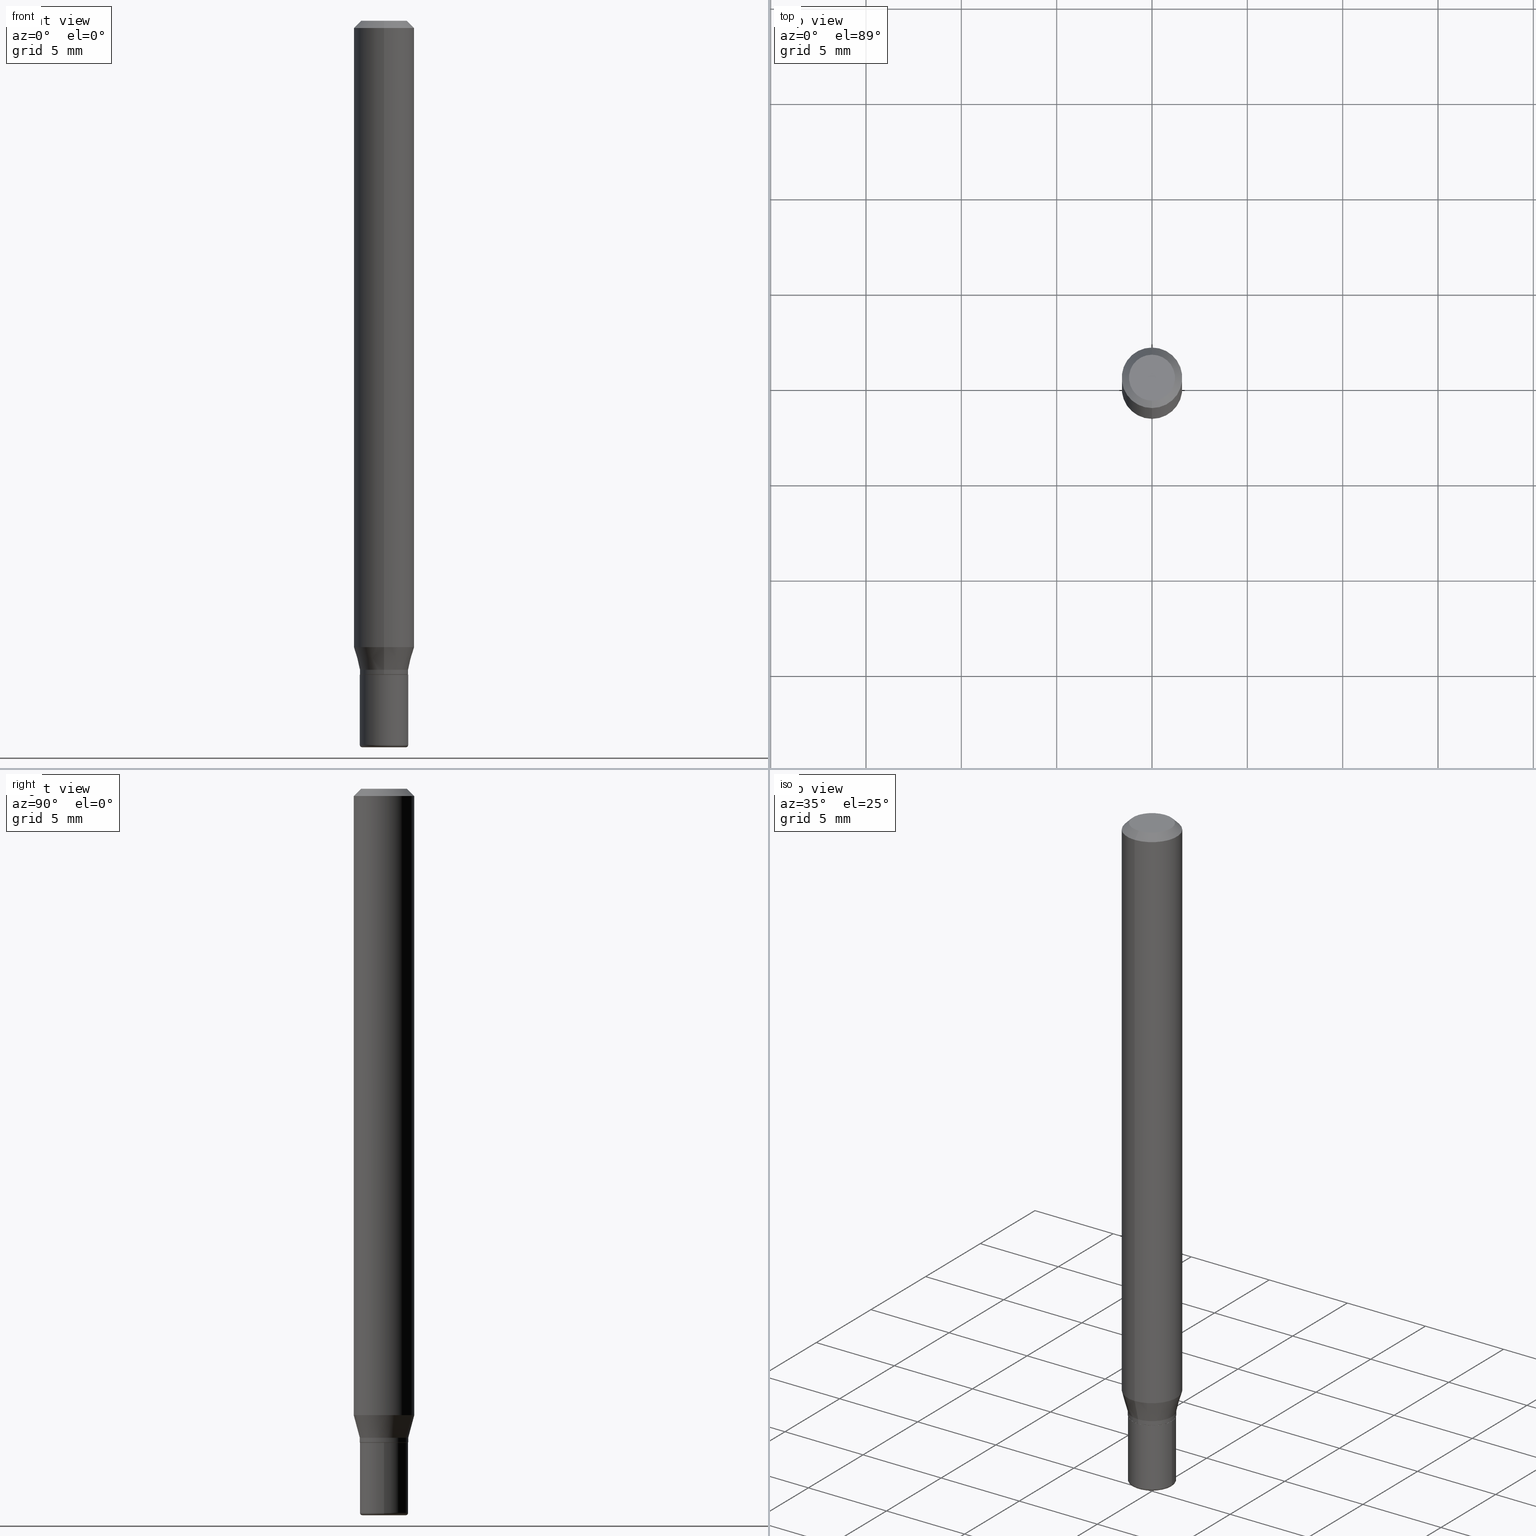
[diagram: canonical four-view strip — front | top / right | iso, engineering-drawing reading convention]
A machine part, canonical four-view strip (front | top / right | iso — engineering-drawing reading convention). The complete STEP part file that produces these views, byte-faithful:
ISO-10303-21;
HEADER;
FILE_DESCRIPTION (( 'STEP AP203' ),
    '1' );
FILE_NAME ('09216.STEP',
    '2024-02-29T23:31:54',
    ( '' ),
    ( '' ),
    'SwSTEP 2.0',
    'SolidWorks 2023',
    '' );
FILE_SCHEMA (( 'CONFIG_CONTROL_DESIGN' ));
ENDSEC;

DATA;
#1 = CARTESIAN_POINT ( 'NONE',  ( 0.000000000000000000, 0.000000000000000000, 0.000000000000000000 ) ) ;
#2 = AXIS2_PLACEMENT_3D ( 'NONE', #270, #74, #432 ) ;
#3 = VECTOR ( 'NONE', #462, 39.37007874015748143 ) ;
#4 = DATE_AND_TIME ( #204, #37 ) ;
#5 = CC_DESIGN_PERSON_AND_ORGANIZATION_ASSIGNMENT ( #493, #14, ( #172 ) ) ;
#6 = CARTESIAN_POINT ( 'NONE',  ( -0.05000000000000000278, -4.611360836624325249E-15, -1.350000000000000089 ) ) ;
#7 = MANIFOLD_SOLID_BREP ( 'Body-Move/Copy2[2]', #407 ) ;
#8 = COORDINATED_UNIVERSAL_TIME_OFFSET ( 5, 0, .BEHIND. ) ;
#9 = MANIFOLD_SOLID_BREP ( 'Body-Move/Copy2[1]', #195 ) ;
#10 = DIRECTION ( 'NONE',  ( 1.839019923739594399E-15, 0.2588190451025241257, 0.9659258262890673130 ) ) ;
#11 = PERSON_AND_ORGANIZATION ( #235, #324 ) ;
#12 = ORIENTED_EDGE ( 'NONE', *, *, #303, .F. ) ;
#13 = DIRECTION ( 'NONE',  ( -6.982962677686265133E-15, -1.000000000000000000, 5.463695987328528015E-15 ) ) ;
#14 = PERSON_AND_ORGANIZATION_ROLE ( 'design_owner' ) ;
#15 = ORIENTED_EDGE ( 'NONE', *, *, #18, .T. ) ;
#16 = VECTOR ( 'NONE', #256, 39.37007874015748143 ) ;
#17 = DIRECTION ( 'NONE',  ( -2.445468806185136597E-29, 3.491481338843145583E-15, 1.000000000000000000 ) ) ;
#18 = EDGE_CURVE ( 'NONE', #133, #271, #173, .T. ) ;
#19 = DIRECTION ( 'NONE',  ( 2.445432708408292326E-29, -3.491533032914144486E-15, -1.000000000000000000 ) ) ;
#20 = DIRECTION ( 'NONE',  ( 1.000000000000000000, -6.982962677686265922E-15, 4.876176775795936353E-29 ) ) ;
#21 = CARTESIAN_POINT ( 'NONE',  ( 3.655975865246779683E-29, -5.219764601570503930E-15, -1.495000000000000329 ) ) ;
#22 = ORIENTED_EDGE ( 'NONE', *, *, #353, .F. ) ;
#23 = CONICAL_SURFACE ( 'NONE', #370, 0.06250000000000000000, 0.7853981633974488341 ) ;
#24 = AXIS2_PLACEMENT_3D ( 'NONE', #413, #175, #48 ) ;
#25 = ADVANCED_FACE ( 'NONE', ( #383 ), #416, .T. ) ;
#26 = AXIS2_PLACEMENT_3D ( 'NONE', #142, #393, #387 ) ;
#27 = PRODUCT_DEFINITION_FORMATION_WITH_SPECIFIED_SOURCE ( 'ANY', '', #172, .NOT_KNOWN. ) ;
#28 = DIRECTION ( 'NONE',  ( -2.445468806185136597E-29, 3.491481338843145583E-15, 1.000000000000000000 ) ) ;
#29 = CARTESIAN_POINT ( 'NONE',  ( -3.491481338842803513E-16, -0.05000000000000465877, -1.339999999999999636 ) ) ;
#30 = ORIENTED_EDGE ( 'NONE', *, *, #377, .T. ) ;
#31 = DIRECTION ( 'NONE',  ( 1.000000000000000000, -6.982962677686266711E-15, 0.000000000000000000 ) ) ;
#32 = ORIENTED_EDGE ( 'NONE', *, *, #64, .F. ) ;
#33 = CARTESIAN_POINT ( 'NONE',  ( 3.668149062612366305E-31, -5.237299549371112845E-17, -0.01499999999999970281 ) ) ;
#34 = AXIS2_PLACEMENT_3D ( 'NONE', #61, #490, #219 ) ;
#35 = VECTOR ( 'NONE', #418, 39.37007874015748143 ) ;
#36 = VERTEX_POINT ( 'NONE', #306 ) ;
#37 = LOCAL_TIME ( 18, 31, 54.00000000000000000, #242 ) ;
#38 = EDGE_CURVE ( 'NONE', #263, #36, #147, .T. ) ;
#39 = DIRECTION ( 'NONE',  ( -2.445432708408292326E-29, 3.491533032914144486E-15, 1.000000000000000000 ) ) ;
#40 = ORIENTED_EDGE ( 'NONE', *, *, #38, .F. ) ;
#41 = DIRECTION ( 'NONE',  ( 1.000000000000000000, -6.982962677686265922E-15, 4.876176775795935793E-29 ) ) ;
#42 = DIRECTION ( 'NONE',  ( -2.445468806185136597E-29, 3.491481338843145583E-15, 1.000000000000000000 ) ) ;
#43 = EDGE_CURVE ( 'NONE', #198, #379, #471, .T. ) ;
#44 = AXIS2_PLACEMENT_3D ( 'NONE', #1, #49, #20 ) ;
#45 = LINE ( 'NONE', #365, #417 ) ;
#46 = PLANE ( 'NONE',  #51 ) ;
#47 = ADVANCED_FACE ( 'NONE', ( #109 ), #436, .F. ) ;
#48 = DIRECTION ( 'NONE',  ( 1.000000000000000000, 0.000000000000000000, 0.000000000000000000 ) ) ;
#49 = DIRECTION ( 'NONE',  ( -2.445468806185136597E-29, 3.491481338843145583E-15, 1.000000000000000000 ) ) ;
#50 = ORIENTED_EDGE ( 'NONE', *, *, #43, .F. ) ;
#51 = AXIS2_PLACEMENT_3D ( 'NONE', #124, #326, #41 ) ;
#52 = CARTESIAN_POINT ( 'NONE',  ( 3.552713678800826532E-16, 0.04999999999999529821, -1.340000000000000080 ) ) ;
#53 = DATE_TIME_ROLE ( 'classification_date' ) ;
#54 = EDGE_LOOP ( 'NONE', ( #213, #191, #211, #346 ) ) ;
#55 = FACE_OUTER_BOUND ( 'NONE', #257, .T. ) ;
#56 = SECURITY_CLASSIFICATION_LEVEL ( 'unclassified' ) ;
#57 = ORIENTED_EDGE ( 'NONE', *, *, #259, .T. ) ;
#58 = DIRECTION ( 'NONE',  ( -2.445432708408292326E-29, 3.491533032914144486E-15, 1.000000000000000000 ) ) ;
#59 = ADVANCED_FACE ( 'NONE', ( #476 ), #396, .T. ) ;
#60 = CIRCLE ( 'NONE', #260, 0.004999999999999903827 ) ;
#61 = CARTESIAN_POINT ( 'NONE',  ( 3.668149062612366305E-31, -5.237299549371112845E-17, -0.01499999999999970281 ) ) ;
#62 = CIRCLE ( 'NONE', #495, 0.04999999999999998196 ) ;
#63 = DIRECTION ( 'NONE',  ( -6.982962677686265922E-15, -1.000000000000000000, 5.518884835685384614E-15 ) ) ;
#64 = EDGE_CURVE ( 'NONE', #364, #423, #351, .T. ) ;
#65 = ORIENTED_EDGE ( 'NONE', *, *, #353, .T. ) ;
#66 = COORDINATED_UNIVERSAL_TIME_OFFSET ( 5, 0, .BEHIND. ) ;
#67 = VECTOR ( 'NONE', #68, 39.37007874015748143 ) ;
#68 = DIRECTION ( 'NONE',  ( -4.851104656540966641E-15, -0.7071067811865503483, -0.7071067811865446862 ) ) ;
#69 = CONICAL_SURFACE ( 'NONE', #361, 0.04949999999999996070, 0.7853981633975507526 ) ;
#70 = DATE_AND_TIME ( #186, #232 ) ;
#71 = CARTESIAN_POINT ( 'NONE',  ( -6.680610484932883231E-45, 9.538423244268342009E-31, 2.731872548347987796E-16 ) ) ;
#72 = ORIENTED_EDGE ( 'NONE', *, *, #489, .F. ) ;
#73 = CC_DESIGN_PERSON_AND_ORGANIZATION_ASSIGNMENT ( #343, #366, ( #468 ) ) ;
#74 = DIRECTION ( 'NONE',  ( -2.445468806185136597E-29, 3.491481338843145583E-15, 1.000000000000000000 ) ) ;
#75 = CIRCLE ( 'NONE', #141, 0.04999999999999991257 ) ;
#76 = DIRECTION ( 'NONE',  ( 1.000000000000000000, -6.982962677686267499E-15, 0.000000000000000000 ) ) ;
#77 = ORIENTED_EDGE ( 'NONE', *, *, #266, .T. ) ;
#78 =( NAMED_UNIT ( * ) PLANE_ANGLE_UNIT ( ) SI_UNIT ( $, .RADIAN. ) );
#79 = ADVANCED_FACE ( 'NONE', ( #188 ), #23, .T. ) ;
#80 = CARTESIAN_POINT ( 'NONE',  ( 3.668203209277704335E-29, -5.237222008264717388E-15, -1.499999999999999778 ) ) ;
#81 = ORIENTED_EDGE ( 'NONE', *, *, #282, .F. ) ;
#82 = LINE ( 'NONE', #238, #237 ) ;
#83 = CIRCLE ( 'NONE', #323, 0.05000000000000000278 ) ;
#84 = ORIENTED_EDGE ( 'NONE', *, *, #332, .T. ) ;
#85 = AXIS2_PLACEMENT_3D ( 'NONE', #458, #17, #94 ) ;
#86 = CARTESIAN_POINT ( 'NONE',  ( 4.440892098500943678E-16, 0.06249999999999551747, -1.293349364905389098 ) ) ;
#87 = CARTESIAN_POINT ( 'NONE',  ( 0.000000000000000000, 0.000000000000000000, 0.000000000000000000 ) ) ;
#88 = APPROVAL_DATE_TIME ( #372, #433 ) ;
#89 = CARTESIAN_POINT ( 'NONE',  ( 3.840629472727447874E-16, 0.04750000000000000749, 1.073394357713768884E-16 ) ) ;
#90 = VECTOR ( 'NONE', #311, 39.37007874015748854 ) ;
#91 = APPROVAL_PERSON_ORGANIZATION ( #254, #464, #422 ) ;
#92 = LOCAL_TIME ( 18, 31, 54.00000000000000000, #8 ) ;
#93 = CALENDAR_DATE ( 2024, 29, 2 ) ;
#94 = DIRECTION ( 'NONE',  ( 1.000000000000000000, -6.982962677686267499E-15, 4.883557194083112901E-29 ) ) ;
#95 = ADVANCED_FACE ( 'NONE', ( #354 ), #510, .T. ) ;
#96 = DIRECTION ( 'NONE',  ( -2.445432708408292326E-29, 3.491533032914144486E-15, 1.000000000000000000 ) ) ;
#97 = APPROVAL_ROLE ( '' ) ;
#98 = ORIENTED_EDGE ( 'NONE', *, *, #180, .T. ) ;
#99 = LINE ( 'NONE', #499, #16 ) ;
#100 = EDGE_LOOP ( 'NONE', ( #150, #65, #363, #72 ) ) ;
#101 = CIRCLE ( 'NONE', #382, 0.04500000000000000527 ) ;
#102 = LINE ( 'NONE', #210, #217 ) ;
#103 = ORIENTED_EDGE ( 'NONE', *, *, #489, .T. ) ;
#104 = AXIS2_PLACEMENT_3D ( 'NONE', #414, #405, #512 ) ;
#105 = VERTEX_POINT ( 'NONE', #349 ) ;
#106 = CARTESIAN_POINT ( 'NONE',  ( -3.491481338842793159E-16, -0.05000000000000456857, -1.349499999999999922 ) ) ;
#107 = CC_DESIGN_PERSON_AND_ORGANIZATION_ASSIGNMENT ( #497, #449, ( #163 ) ) ;
#108 = DIRECTION ( 'NONE',  ( -6.982962677686265133E-15, -1.000000000000000000, 5.463695987328530381E-15 ) ) ;
#109 = FACE_OUTER_BOUND ( 'NONE', #110, .T. ) ;
#110 = EDGE_LOOP ( 'NONE', ( #302, #357 ) ) ;
#111 = DIRECTION ( 'NONE',  ( 2.445432708408292326E-29, -3.491533032914144486E-15, -1.000000000000000000 ) ) ;
#112 = DIRECTION ( 'NONE',  ( 1.000000000000000000, -6.982962677686274599E-15, 0.000000000000000000 ) ) ;
#113 = VERTEX_POINT ( 'NONE', #143 ) ;
#114 = CC_DESIGN_APPROVAL ( #216, ( #163 ) ) ;
#115 = ADVANCED_FACE ( 'NONE', ( #151 ), #514, .T. ) ;
#116 = DIRECTION ( 'NONE',  ( -6.982962677686265922E-15, -1.000000000000000000, 4.370956789862821150E-15 ) ) ;
#117 = ORIENTED_EDGE ( 'NONE', *, *, #245, .F. ) ;
#118 = DIRECTION ( 'NONE',  ( 7.105427357601001859E-15, 1.000000000000000000, -3.491481338843145583E-15 ) ) ;
#119 = PLANE ( 'NONE',  #182 ) ;
#120 = PRODUCT_RELATED_PRODUCT_CATEGORY ( 'detail', '', ( #172 ) ) ;
#121 = FACE_OUTER_BOUND ( 'NONE', #136, .T. ) ;
#122 = ORIENTED_EDGE ( 'NONE', *, *, #403, .T. ) ;
#123 = AXIS2_PLACEMENT_3D ( 'NONE', #502, #308, #108 ) ;
#124 = CARTESIAN_POINT ( 'NONE',  ( 3.582686580359765478E-29, -5.359686688179452536E-15, -1.499999999999999778 ) ) ;
#125 = EDGE_CURVE ( 'NONE', #198, #133, #319, .T. ) ;
#126 = ORIENTED_EDGE ( 'NONE', *, *, #200, .F. ) ;
#127 = APPROVAL_STATUS ( 'not_yet_approved' ) ;
#128 = DIRECTION ( 'NONE',  ( -6.982962677686265133E-15, -1.000000000000000000, 3.491533032914144091E-15 ) ) ;
#129 = SHAPE_DEFINITION_REPRESENTATION ( #294, #455 ) ;
#130 = DIRECTION ( 'NONE',  ( -2.445432708408292326E-29, 3.491533032914144486E-15, 1.000000000000000000 ) ) ;
#131 = ADVANCED_FACE ( 'NONE', ( #482 ), #119, .F. ) ;
#132 = APPLICATION_PROTOCOL_DEFINITION ( 'international standard', 'config_control_design', 1994, #467 ) ;
#133 = VERTEX_POINT ( 'NONE', #442 ) ;
#134 = DIRECTION ( 'NONE',  ( 1.000000000000000000, -6.982962677686267499E-15, 4.883557194083112901E-29 ) ) ;
#135 = CARTESIAN_POINT ( 'NONE',  ( 3.276879829267111616E-29, -4.678654264104954108E-15, -1.339999999999999858 ) ) ;
#136 = EDGE_LOOP ( 'NONE', ( #176, #317, #446, #227 ) ) ;
#137 = CARTESIAN_POINT ( 'NONE',  ( 0.04999999999999996114, -3.491481338843130397E-16, 2.438088387897966145E-30 ) ) ;
#138 = DIRECTION ( 'NONE',  ( 6.982962677686265922E-15, 1.000000000000000000, -3.483106191921935554E-15 ) ) ;
#139 = CARTESIAN_POINT ( 'NONE',  ( 3.301334156351195229E-29, -4.713569594434094720E-15, -1.350000000000000089 ) ) ;
#140 = EDGE_CURVE ( 'NONE', #36, #252, #313, .T. ) ;
#141 = AXIS2_PLACEMENT_3D ( 'NONE', #21, #28, #31 ) ;
#142 = CARTESIAN_POINT ( 'NONE',  ( 3.301382888349935078E-29, -4.713499807438246596E-15, -1.350000000000000089 ) ) ;
#143 = CARTESIAN_POINT ( 'NONE',  ( 3.996802888650884119E-16, 0.04999999999999529821, -1.340000000000000080 ) ) ;
#144 = DIRECTION ( 'NONE',  ( -1.000000000000000000, 6.982962677686265922E-15, -4.876176775795935793E-29 ) ) ;
#145 = VERTEX_POINT ( 'NONE', #477 ) ;
#146 = ADVANCED_FACE ( 'NONE', ( #159 ), #46, .F. ) ;
#147 = LINE ( 'NONE', #29, #90 ) ;
#148 = CIRCLE ( 'NONE', #215, 0.04999999999999998196 ) ;
#149 = AXIS2_PLACEMENT_3D ( 'NONE', #291, #488, #424 ) ;
#150 = ORIENTED_EDGE ( 'NONE', *, *, #517, .T. ) ;
#151 = FACE_OUTER_BOUND ( 'NONE', #293, .T. ) ;
#152 = CARTESIAN_POINT ( 'NONE',  ( 0.000000000000000000, 0.000000000000000000, 0.000000000000000000 ) ) ;
#153 = ADVANCED_FACE ( 'NONE', ( #121 ), #202, .T. ) ;
#154 = ORIENTED_EDGE ( 'NONE', *, *, #483, .F. ) ;
#155 = AXIS2_PLACEMENT_3D ( 'NONE', #135, #96, #381 ) ;
#156 = DIRECTION ( 'NONE',  ( -2.445432708408292326E-29, 3.491533032914144486E-15, 1.000000000000000000 ) ) ;
#157 = ORIENTED_EDGE ( 'NONE', *, *, #169, .F. ) ;
#158 = DIRECTION ( 'NONE',  ( -6.982962677686265922E-15, -1.000000000000000000, 3.491533032914144486E-15 ) ) ;
#159 = FACE_OUTER_BOUND ( 'NONE', #340, .T. ) ;
#160 = EDGE_CURVE ( 'NONE', #321, #145, #83, .T. ) ;
#161 = CARTESIAN_POINT ( 'NONE',  ( 3.316907271900976589E-16, 0.04750000000000000749, -2.925419164602250137E-17 ) ) ;
#162 = VERTEX_POINT ( 'NONE', #286 ) ;
#163 = SECURITY_CLASSIFICATION ( '', '', #56 ) ;
#164 = DIRECTION ( 'NONE',  ( -2.445432708408292326E-29, 3.491533032914144486E-15, 1.000000000000000000 ) ) ;
#165 = DIRECTION ( 'NONE',  ( -2.445432708408292326E-29, 3.491533032914144486E-15, 1.000000000000000000 ) ) ;
#166 = ORIENTED_EDGE ( 'NONE', *, *, #368, .T. ) ;
#167 = PERSON_AND_ORGANIZATION_ROLE ( 'design_supplier' ) ;
#168 = DIRECTION ( 'NONE',  ( -2.445432708408292326E-29, 3.491533032914144486E-15, 1.000000000000000000 ) ) ;
#169 = EDGE_CURVE ( 'NONE', #162, #443, #380, .T. ) ;
#170 = ORIENTED_EDGE ( 'NONE', *, *, #43, .T. ) ;
#171 = DIRECTION ( 'NONE',  ( -6.982962677686265922E-15, -1.000000000000000000, 5.518884835685384614E-15 ) ) ;
#172 = PRODUCT ( '09216', '09216', '', ( #208 ) ) ;
#173 = CIRCLE ( 'NONE', #34, 0.06250000000000000000 ) ;
#174 = AXIS2_PLACEMENT_3D ( 'NONE', #139, #339, #171 ) ;
#175 = DIRECTION ( 'NONE',  ( 0.000000000000000000, 0.000000000000000000, 1.000000000000000000 ) ) ;
#176 = ORIENTED_EDGE ( 'NONE', *, *, #140, .T. ) ;
#177 = DIRECTION ( 'NONE',  ( -6.982962677686265133E-15, -1.000000000000000000, 5.463695987328528015E-15 ) ) ;
#178 = ORIENTED_EDGE ( 'NONE', *, *, #316, .F. ) ;
#179 = FACE_OUTER_BOUND ( 'NONE', #410, .T. ) ;
#180 = EDGE_CURVE ( 'NONE', #113, #263, #148, .T. ) ;
#181 = AXIS2_PLACEMENT_3D ( 'NONE', #484, #404, #358 ) ;
#182 = AXIS2_PLACEMENT_3D ( 'NONE', #161, #234, #289 ) ;
#183 = APPROVAL_ROLE ( '' ) ;
#184 = ORIENTED_EDGE ( 'NONE', *, *, #200, .T. ) ;
#185 = CIRCLE ( 'NONE', #123, 0.04999999999999996114 ) ;
#186 = CALENDAR_DATE ( 2024, 29, 2 ) ;
#187 = LINE ( 'NONE', #314, #504 ) ;
#188 = FACE_OUTER_BOUND ( 'NONE', #515, .T. ) ;
#189 = DIRECTION ( 'NONE',  ( 6.982962677686265922E-15, 1.000000000000000000, -3.483106191921935554E-15 ) ) ;
#190 = APPROVAL_PERSON_ORGANIZATION ( #11, #216, #183 ) ;
#191 = ORIENTED_EDGE ( 'NONE', *, *, #303, .T. ) ;
#192 = DIRECTION ( 'NONE',  ( -6.982962677686265133E-15, -1.000000000000000000, 3.491533032914144880E-15 ) ) ;
#193 = EDGE_CURVE ( 'NONE', #252, #36, #508, .T. ) ;
#194 = CARTESIAN_POINT ( 'NONE',  ( 3.276879829267111616E-29, -4.678654264104954108E-15, -1.339999999999999858 ) ) ;
#195 = CLOSED_SHELL ( 'NONE', ( #115, #272, #47, #225, #385, #146 ) ) ;
#196 = CIRCLE ( 'NONE', #104, 0.04949999999999996070 ) ;
#197 = DIRECTION ( 'NONE',  ( 1.000000000000000000, -6.982962677686265922E-15, 4.876176775795936353E-29 ) ) ;
#198 = VERTEX_POINT ( 'NONE', #236 ) ;
#199 = FACE_OUTER_BOUND ( 'NONE', #298, .T. ) ;
#200 = EDGE_CURVE ( 'NONE', #162, #423, #60, .T. ) ;
#201 = APPROVAL_STATUS ( 'not_yet_approved' ) ;
#202 = CYLINDRICAL_SURFACE ( 'NONE', #437, 0.06250000000000000000 ) ;
#203 = DIRECTION ( 'NONE',  ( -6.982962677686265133E-15, -1.000000000000000000, 3.491533032914144880E-15 ) ) ;
#204 = CALENDAR_DATE ( 2024, 29, 2 ) ;
#205 = LINE ( 'NONE', #501, #3 ) ;
#206 = AXIS2_PLACEMENT_3D ( 'NONE', #402, #164, #203 ) ;
#207 = CARTESIAN_POINT ( 'NONE',  ( 0.04999999999999991257, -5.568912735454817265E-15, -1.495000000000000329 ) ) ;
#208 = MECHANICAL_CONTEXT ( 'NONE', #329, 'mechanical' ) ;
#209 = EDGE_CURVE ( 'NONE', #105, #287, #196, .T. ) ;
#210 = CARTESIAN_POINT ( 'NONE',  ( -4.364351673553916201E-16, -0.06250000000000000000, 2.182208145571340057E-16 ) ) ;
#211 = ORIENTED_EDGE ( 'NONE', *, *, #453, .F. ) ;
#212 = DIRECTION ( 'NONE',  ( -6.982962677686265922E-15, -1.000000000000000000, 5.518884835685384614E-15 ) ) ;
#213 = ORIENTED_EDGE ( 'NONE', *, *, #474, .T. ) ;
#214 = FACE_OUTER_BOUND ( 'NONE', #337, .T. ) ;
#215 = AXIS2_PLACEMENT_3D ( 'NONE', #194, #156, #330 ) ;
#216 = APPROVAL ( #469, 'UNSPECIFIED' ) ;
#217 = VECTOR ( 'NONE', #336, 39.37007874015748143 ) ;
#218 = APPROVAL_PERSON_ORGANIZATION ( #335, #433, #97 ) ;
#219 = DIRECTION ( 'NONE',  ( -6.982962677686265922E-15, -1.000000000000000000, 3.483106191921935554E-15 ) ) ;
#220 = CARTESIAN_POINT ( 'NONE',  ( -0.04999999999999991257, -4.611360836624325249E-15, -1.495000000000000329 ) ) ;
#221 = CARTESIAN_POINT ( 'NONE',  ( 3.668149062612366305E-31, -5.237299549371112845E-17, -0.01499999999999970281 ) ) ;
#222 = CARTESIAN_POINT ( 'NONE',  ( -0.04500000000000000527, -4.890985505431563165E-15, -1.499999999999999778 ) ) ;
#223 = AXIS2_PLACEMENT_3D ( 'NONE', #267, #470, #400 ) ;
#224 = LOCAL_TIME ( 18, 31, 54.00000000000000000, #301 ) ;
#225 = ADVANCED_FACE ( 'NONE', ( #487 ), #320, .T. ) ;
#226 = APPROVAL_DATE_TIME ( #70, #216 ) ;
#227 = ORIENTED_EDGE ( 'NONE', *, *, #377, .F. ) ;
#228 = CARTESIAN_POINT ( 'NONE',  ( 3.491481338843463198E-16, 0.04999999999999529127, -1.350000000000000311 ) ) ;
#229 = ADVANCED_FACE ( 'NONE', ( #199 ), #362, .F. ) ;
#230 = CARTESIAN_POINT ( 'NONE',  ( 0.000000000000000000, 0.000000000000000000, 0.000000000000000000 ) ) ;
#231 = AXIS2_PLACEMENT_3D ( 'NONE', #71, #439, #466 ) ;
#232 = LOCAL_TIME ( 18, 31, 54.00000000000000000, #66 ) ;
#233 = LENGTH_MEASURE_WITH_UNIT ( LENGTH_MEASURE( 0.02539999999999999897 ), #318 );
#234 = DIRECTION ( 'NONE',  ( 2.445432708408292046E-29, -3.491533032914144486E-15, -1.000000000000000000 ) ) ;
#235 = PERSON ( 'UNSPECIFIED', 'UNSPECIFIED', 'UNSPECIFIED', ('UNSPECIFIED'), ('UNSPECIFIED'), ('UNSPECIFIED') ) ;
#236 = CARTESIAN_POINT ( 'NONE',  ( -3.773273898774340269E-16, -0.04750000000000000749, 4.390350738982206831E-16 ) ) ;
#237 = VECTOR ( 'NONE', #409, 39.37007874015748143 ) ;
#238 = CARTESIAN_POINT ( 'NONE',  ( 3.517186542012822477E-16, 0.04949999999999524919, -1.350000000000000311 ) ) ;
#239 = CC_DESIGN_PERSON_AND_ORGANIZATION_ASSIGNMENT ( #251, #297, ( #27 ) ) ;
#240 = ORIENTED_EDGE ( 'NONE', *, *, #316, .T. ) ;
#241 = CARTESIAN_POINT ( 'NONE',  ( 4.440892098500943678E-16, 0.06249999999999995143, -0.01499999999999992138 ) ) ;
#242 = COORDINATED_UNIVERSAL_TIME_OFFSET ( 5, 0, .BEHIND. ) ;
#243 = CARTESIAN_POINT ( 'NONE',  ( 3.301334156351195229E-29, -4.713569594434094720E-15, -1.350000000000000089 ) ) ;
#244 = EDGE_LOOP ( 'NONE', ( #22, #240, #103, #388 ) ) ;
#245 = EDGE_CURVE ( 'NONE', #443, #364, #296, .T. ) ;
#246 = DATE_AND_TIME ( #338, #92 ) ;
#247 = LINE ( 'NONE', #52, #391 ) ;
#248 = CIRCLE ( 'NONE', #149, 0.04999999999999996114 ) ;
#249 = ORIENTED_EDGE ( 'NONE', *, *, #125, .T. ) ;
#250 = CONICAL_SURFACE ( 'NONE', #371, 0.04999999999999998196, 0.2617993877991494633 ) ;
#251 = PERSON_AND_ORGANIZATION ( #235, #324 ) ;
#252 = VERTEX_POINT ( 'NONE', #86 ) ;
#253 = DIRECTION ( 'NONE',  ( 1.000000000000000000, -6.982962677686267499E-15, 0.000000000000000000 ) ) ;
#254 = PERSON_AND_ORGANIZATION ( #235, #324 ) ;
#255 = ORIENTED_EDGE ( 'NONE', *, *, #193, .F. ) ;
#256 = DIRECTION ( 'NONE',  ( -2.445432708408292606E-29, 3.491533032914144486E-15, 1.000000000000000000 ) ) ;
#257 = EDGE_LOOP ( 'NONE', ( #494, #98, #386, #255 ) ) ;
#258 = CARTESIAN_POINT ( 'NONE',  ( -6.680610484932883231E-45, 9.538423244268342009E-31, 2.731872548347987796E-16 ) ) ;
#259 = EDGE_CURVE ( 'NONE', #287, #395, #82, .T. ) ;
#260 = AXIS2_PLACEMENT_3D ( 'NONE', #280, #447, #481 ) ;
#261 = DIRECTION ( 'NONE',  ( -2.445432708408292606E-29, 3.491533032914144486E-15, 1.000000000000000000 ) ) ;
#262 = CC_DESIGN_SECURITY_CLASSIFICATION ( #163, ( #27 ) ) ;
#263 = VERTEX_POINT ( 'NONE', #367 ) ;
#264 = LINE ( 'NONE', #137, #431 ) ;
#265 = ORIENTED_EDGE ( 'NONE', *, *, #209, .F. ) ;
#266 = EDGE_CURVE ( 'NONE', #105, #498, #45, .T. ) ;
#267 = CARTESIAN_POINT ( 'NONE',  ( 0.000000000000000000, 0.000000000000000000, 0.000000000000000000 ) ) ;
#268 = UNCERTAINTY_MEASURE_WITH_UNIT (LENGTH_MEASURE( 1.000000000000000082E-05 ), #274, 'distance_accuracy_value', 'NONE');
#269 = AXIS2_PLACEMENT_3D ( 'NONE', #426, #130, #63 ) ;
#270 = CARTESIAN_POINT ( 'NONE',  ( 3.655975865246779683E-29, -5.219764601570503930E-15, -1.495000000000000329 ) ) ;
#271 = VERTEX_POINT ( 'NONE', #241 ) ;
#272 = ADVANCED_FACE ( 'NONE', ( #334 ), #411, .T. ) ;
#273 = ORIENTED_EDGE ( 'NONE', *, *, #64, .T. ) ;
#274 =( CONVERSION_BASED_UNIT ( 'INCH', #233 ) LENGTH_UNIT ( ) NAMED_UNIT ( #389 ) );
#275 = AXIS2_PLACEMENT_3D ( 'NONE', #401, #506, #134 ) ;
#276 =( GEOMETRIC_REPRESENTATION_CONTEXT ( 3 ) GLOBAL_UNCERTAINTY_ASSIGNED_CONTEXT ( ( #268 ) ) GLOBAL_UNIT_ASSIGNED_CONTEXT ( ( #274, #78, #322 ) ) REPRESENTATION_CONTEXT ( 'NONE', 'WORKASPACE' ) );
#277 = CC_DESIGN_APPROVAL ( #464, ( #468 ) ) ;
#278 = DIRECTION ( 'NONE',  ( -6.982962677686265922E-15, -1.000000000000000000, 3.491533032914144091E-15 ) ) ;
#279 = EDGE_LOOP ( 'NONE', ( #166, #170 ) ) ;
#280 = CARTESIAN_POINT ( 'NONE',  ( 0.04500000000000000527, -5.533997922066385616E-15, -1.495000000000000107 ) ) ;
#281 = ORIENTED_EDGE ( 'NONE', *, *, #327, .T. ) ;
#282 = EDGE_CURVE ( 'NONE', #271, #133, #485, .T. ) ;
#283 = DIRECTION ( 'NONE',  ( -1.000000000000000000, 7.105427357601061812E-15, 0.000000000000000000 ) ) ;
#284 = AXIS2_PLACEMENT_3D ( 'NONE', #513, #479, #116 ) ;
#285 = CIRCLE ( 'NONE', #26, 0.05000000000000000278 ) ;
#286 = CARTESIAN_POINT ( 'NONE',  ( 0.04500000000000000527, -5.551455328760599863E-15, -1.499999999999999778 ) ) ;
#287 = VERTEX_POINT ( 'NONE', #429 ) ;
#288 = DATE_TIME_ROLE ( 'creation_date' ) ;
#289 = DIRECTION ( 'NONE',  ( 6.982962677686265922E-15, 1.000000000000000000, -3.491533032914144486E-15 ) ) ;
#290 = ADVANCED_FACE ( 'NONE', ( #421 ), #69, .T. ) ;
#291 = CARTESIAN_POINT ( 'NONE',  ( 3.300111439996990880E-29, -4.711823827917637768E-15, -1.349500000000000144 ) ) ;
#292 = CALENDAR_DATE ( 2024, 29, 2 ) ;
#293 = EDGE_LOOP ( 'NONE', ( #406, #392, #360, #126 ) ) ;
#294 = PRODUCT_DEFINITION_SHAPE ( 'NONE', 'NONE',  #468 ) ;
#295 = CARTESIAN_POINT ( 'NONE',  ( 3.276879829267111616E-29, -4.678654264104954108E-15, -1.339999999999999858 ) ) ;
#296 = CIRCLE ( 'NONE', #478, 0.004999999999999903827 ) ;
#297 = PERSON_AND_ORGANIZATION_ROLE ( 'creator' ) ;
#298 = EDGE_LOOP ( 'NONE', ( #265, #459 ) ) ;
#299 = CARTESIAN_POINT ( 'NONE',  ( -4.287811248607203282E-16, -0.06250000000000005551, -0.01499999999999948597 ) ) ;
#300 = CARTESIAN_POINT ( 'NONE',  ( -0.04999999999999996114, 3.552713678800498168E-16, -2.459467545127451209E-30 ) ) ;
#301 = COORDINATED_UNIVERSAL_TIME_OFFSET ( 5, 0, .BEHIND. ) ;
#302 = ORIENTED_EDGE ( 'NONE', *, *, #453, .T. ) ;
#303 = EDGE_CURVE ( 'NONE', #364, #321, #373, .T. ) ;
#304 = DIRECTION ( 'NONE',  ( -2.445432708408292326E-29, 3.491533032914144486E-15, 1.000000000000000000 ) ) ;
#305 = DIRECTION ( 'NONE',  ( 4.937700262164550409E-15, 0.7071067811865454633, -0.7071067811865495711 ) ) ;
#306 = CARTESIAN_POINT ( 'NONE',  ( -4.364351673553597698E-16, -0.06250000000000449640, -1.293349364905388654 ) ) ;
#307 = CARTESIAN_POINT ( 'NONE',  ( 3.276879829267111616E-29, -4.678654264104954108E-15, -1.339999999999999858 ) ) ;
#308 = DIRECTION ( 'NONE',  ( -2.445432708408292326E-29, 3.491533032914144486E-15, 1.000000000000000000 ) ) ;
#309 = ORIENTED_EDGE ( 'NONE', *, *, #403, .F. ) ;
#310 = EDGE_CURVE ( 'NONE', #252, #271, #99, .T. ) ;
#311 = DIRECTION ( 'NONE',  ( -1.807323732225324223E-15, -0.2588190451025173533, 0.9659258262890690894 ) ) ;
#312 = ORIENTED_EDGE ( 'NONE', *, *, #266, .F. ) ;
#313 = CIRCLE ( 'NONE', #181, 0.06250000000000000000 ) ;
#314 = CARTESIAN_POINT ( 'NONE',  ( 4.364351673553919652E-16, 0.06249999999999995143, -0.01499999999999992138 ) ) ;
#315 = AXIS2_PLACEMENT_3D ( 'NONE', #258, #304, #128 ) ;
#316 = EDGE_CURVE ( 'NONE', #395, #498, #248, .T. ) ;
#317 = ORIENTED_EDGE ( 'NONE', *, *, #310, .T. ) ;
#318 =( LENGTH_UNIT ( ) NAMED_UNIT ( * ) SI_UNIT ( $, .METRE. ) );
#319 = LINE ( 'NONE', #299, #67 ) ;
#320 = CYLINDRICAL_SURFACE ( 'NONE', #408, 0.04999999999999996114 ) ;
#321 = VERTEX_POINT ( 'NONE', #6 ) ;
#322 =( NAMED_UNIT ( * ) SI_UNIT ( $, .STERADIAN. ) SOLID_ANGLE_UNIT ( ) );
#323 = AXIS2_PLACEMENT_3D ( 'NONE', #356, #440, #112 ) ;
#324 = ORGANIZATION ( 'UNSPECIFIED', 'UNSPECIFIED', '' ) ;
#325 = DESIGN_CONTEXT ( 'detailed design', #467, 'design' ) ;
#326 = DIRECTION ( 'NONE',  ( -2.438088387897960049E-29, 3.491481338843145188E-15, 1.000000000000000000 ) ) ;
#327 = EDGE_CURVE ( 'NONE', #423, #145, #264, .T. ) ;
#328 = CARTESIAN_POINT ( 'NONE',  ( -0.04500000000000000527, -4.900020370478457773E-15, -1.495000000000000107 ) ) ;
#329 = APPLICATION_CONTEXT ( 'configuration controlled 3d designs of mechanical parts and assemblies' ) ;
#330 = DIRECTION ( 'NONE',  ( -6.982962677686265133E-15, -1.000000000000000000, 5.463695987328528015E-15 ) ) ;
#331 = AXIS2_PLACEMENT_3D ( 'NONE', #221, #19, #138 ) ;
#332 = EDGE_CURVE ( 'NONE', #263, #113, #62, .T. ) ;
#333 = TOROIDAL_SURFACE ( 'NONE', #85, 0.04500000000000000527, 0.004999999999999903827 ) ;
#334 = FACE_OUTER_BOUND ( 'NONE', #54, .T. ) ;
#335 = PERSON_AND_ORGANIZATION ( #235, #324 ) ;
#336 = DIRECTION ( 'NONE',  ( -2.445432708408292606E-29, 3.491533032914144486E-15, 1.000000000000000000 ) ) ;
#337 = EDGE_LOOP ( 'NONE', ( #84, #465, #430, #40 ) ) ;
#338 = CALENDAR_DATE ( 2024, 29, 2 ) ;
#339 = DIRECTION ( 'NONE',  ( -2.445432708408292326E-29, 3.491533032914144486E-15, 1.000000000000000000 ) ) ;
#340 = EDGE_LOOP ( 'NONE', ( #157, #309 ) ) ;
#341 = CIRCLE ( 'NONE', #174, 0.04949999999999996070 ) ;
#342 = ADVANCED_FACE ( 'NONE', ( #179 ), #427, .T. ) ;
#343 = PERSON_AND_ORGANIZATION ( #235, #324 ) ;
#344 = EDGE_LOOP ( 'NONE', ( #445, #57, #428, #312 ) ) ;
#345 = FACE_OUTER_BOUND ( 'NONE', #355, .T. ) ;
#346 = ORIENTED_EDGE ( 'NONE', *, *, #327, .F. ) ;
#347 = CARTESIAN_POINT ( 'NONE',  ( 3.301334156351195229E-29, -4.713569594434094720E-15, -1.350000000000000089 ) ) ;
#348 = ADVANCED_FACE ( 'NONE', ( #214 ), #250, .T. ) ;
#349 = CARTESIAN_POINT ( 'NONE',  ( -3.456566525454369004E-16, -0.04950000000000467221, -1.349999999999999867 ) ) ;
#350 = ORIENTED_EDGE ( 'NONE', *, *, #359, .T. ) ;
#351 = CIRCLE ( 'NONE', #2, 0.04999999999999991257 ) ;
#352 = VECTOR ( 'NONE', #261, 39.37007874015748143 ) ;
#353 = EDGE_CURVE ( 'NONE', #395, #113, #205, .T. ) ;
#354 = FACE_OUTER_BOUND ( 'NONE', #244, .T. ) ;
#355 = EDGE_LOOP ( 'NONE', ( #117, #122, #184, #32 ) ) ;
#356 = CARTESIAN_POINT ( 'NONE',  ( 3.301382888349935078E-29, -4.713499807438246596E-15, -1.350000000000000089 ) ) ;
#357 = ORIENTED_EDGE ( 'NONE', *, *, #160, .T. ) ;
#358 = DIRECTION ( 'NONE',  ( -6.982962677686265922E-15, -1.000000000000000000, 4.370956789862821150E-15 ) ) ;
#359 = EDGE_CURVE ( 'NONE', #287, #105, #341, .T. ) ;
#360 = ORIENTED_EDGE ( 'NONE', *, *, #474, .F. ) ;
#361 = AXIS2_PLACEMENT_3D ( 'NONE', #347, #168, #212 ) ;
#362 = PLANE ( 'NONE',  #399 ) ;
#363 = ORIENTED_EDGE ( 'NONE', *, *, #332, .F. ) ;
#364 = VERTEX_POINT ( 'NONE', #220 ) ;
#365 = CARTESIAN_POINT ( 'NONE',  ( -3.456566525454369004E-16, -0.04950000000000467221, -1.349999999999999867 ) ) ;
#366 = PERSON_AND_ORGANIZATION_ROLE ( 'creator' ) ;
#367 = CARTESIAN_POINT ( 'NONE',  ( -3.491481338842803513E-16, -0.05000000000000465877, -1.339999999999999636 ) ) ;
#368 = EDGE_CURVE ( 'NONE', #379, #198, #472, .T. ) ;
#369 = PERSON_AND_ORGANIZATION ( #235, #324 ) ;
#370 = AXIS2_PLACEMENT_3D ( 'NONE', #33, #111, #189 ) ;
#371 = AXIS2_PLACEMENT_3D ( 'NONE', #295, #165, #13 ) ;
#372 = DATE_AND_TIME ( #93, #505 ) ;
#373 = LINE ( 'NONE', #300, #35 ) ;
#374 = COORDINATED_UNIVERSAL_TIME_OFFSET ( 5, 0, .BEHIND. ) ;
#375 = ORIENTED_EDGE ( 'NONE', *, *, #125, .F. ) ;
#376 = DIRECTION ( 'NONE',  ( -6.982962677686265922E-15, -1.000000000000000000, 3.483106191921935554E-15 ) ) ;
#377 = EDGE_CURVE ( 'NONE', #36, #133, #102, .T. ) ;
#378 = APPLICATION_PROTOCOL_DEFINITION ( 'international standard', 'config_control_design', 1994, #329 ) ;
#379 = VERTEX_POINT ( 'NONE', #89 ) ;
#380 = CIRCLE ( 'NONE', #390, 0.04500000000000000527 ) ;
#381 = DIRECTION ( 'NONE',  ( -6.982962677686265133E-15, -1.000000000000000000, 5.463695987328528015E-15 ) ) ;
#382 = AXIS2_PLACEMENT_3D ( 'NONE', #496, #456, #253 ) ;
#383 = FACE_OUTER_BOUND ( 'NONE', #475, .T. ) ;
#384 = DIRECTION ( 'NONE',  ( -2.445468806185136877E-29, 3.491481338843145188E-15, 1.000000000000000000 ) ) ;
#385 = ADVANCED_FACE ( 'NONE', ( #345 ), #333, .T. ) ;
#386 = ORIENTED_EDGE ( 'NONE', *, *, #38, .T. ) ;
#387 = DIRECTION ( 'NONE',  ( 1.000000000000000000, -6.982962677686274599E-15, 0.000000000000000000 ) ) ;
#388 = ORIENTED_EDGE ( 'NONE', *, *, #180, .F. ) ;
#389 = DIMENSIONAL_EXPONENTS ( 1.000000000000000000, 0.000000000000000000, 0.000000000000000000, 0.000000000000000000, 0.000000000000000000, 0.000000000000000000, 0.000000000000000000 ) ;
#390 = AXIS2_PLACEMENT_3D ( 'NONE', #80, #450, #76 ) ;
#391 = VECTOR ( 'NONE', #10, 39.37007874015748854 ) ;
#392 = ORIENTED_EDGE ( 'NONE', *, *, #245, .T. ) ;
#393 = DIRECTION ( 'NONE',  ( -2.445468806185136597E-29, 3.491481338843145583E-15, 1.000000000000000000 ) ) ;
#394 = EDGE_CURVE ( 'NONE', #113, #252, #247, .T. ) ;
#395 = VERTEX_POINT ( 'NONE', #491 ) ;
#396 = CYLINDRICAL_SURFACE ( 'NONE', #223, 0.06250000000000000000 ) ;
#397 = CYLINDRICAL_SURFACE ( 'NONE', #206, 0.04999999999999996808 ) ;
#398 = ORIENTED_EDGE ( 'NONE', *, *, #160, .F. ) ;
#399 = AXIS2_PLACEMENT_3D ( 'NONE', #243, #516, #158 ) ;
#400 = DIRECTION ( 'NONE',  ( -6.982962677686265922E-15, -1.000000000000000000, 3.491533032914144091E-15 ) ) ;
#401 = CARTESIAN_POINT ( 'NONE',  ( 3.655975865246779122E-29, -5.219764601570503141E-15, -1.495000000000000107 ) ) ;
#402 = CARTESIAN_POINT ( 'NONE',  ( 0.000000000000000000, 0.000000000000000000, 0.000000000000000000 ) ) ;
#403 = EDGE_CURVE ( 'NONE', #443, #162, #101, .T. ) ;
#404 = DIRECTION ( 'NONE',  ( -2.445432708408292326E-29, 3.491533032914144486E-15, 1.000000000000000000 ) ) ;
#405 = DIRECTION ( 'NONE',  ( -2.445432708408292326E-29, 3.491533032914144486E-15, 1.000000000000000000 ) ) ;
#406 = ORIENTED_EDGE ( 'NONE', *, *, #169, .T. ) ;
#407 = CLOSED_SHELL ( 'NONE', ( #420, #290, #79, #153, #348, #412, #59, #25, #131, #229, #342, #95 ) ) ;
#408 = AXIS2_PLACEMENT_3D ( 'NONE', #152, #42, #197 ) ;
#409 = DIRECTION ( 'NONE',  ( 5.024295867788576727E-15, 0.7071067811866224018, 0.7071067811864726327 ) ) ;
#410 = EDGE_LOOP ( 'NONE', ( #415, #350, #77, #178 ) ) ;
#411 = CYLINDRICAL_SURFACE ( 'NONE', #44, 0.04999999999999996114 ) ;
#412 = ADVANCED_FACE ( 'NONE', ( #55 ), #509, .T. ) ;
#413 = CARTESIAN_POINT ( 'NONE',  ( 0.000000000000000000, 0.000000000000000000, 0.000000000000000000 ) ) ;
#414 = CARTESIAN_POINT ( 'NONE',  ( 3.301334156351195229E-29, -4.713569594434094720E-15, -1.350000000000000089 ) ) ;
#415 = ORIENTED_EDGE ( 'NONE', *, *, #259, .F. ) ;
#416 = CONICAL_SURFACE ( 'NONE', #331, 0.06250000000000000000, 0.7853981633974488341 ) ;
#417 = VECTOR ( 'NONE', #518, 39.37007874015748143 ) ;
#418 = DIRECTION ( 'NONE',  ( -2.445468806185136877E-29, 3.491481338843145188E-15, 1.000000000000000000 ) ) ;
#419 = DATE_AND_TIME ( #292, #224 ) ;
#420 = ADVANCED_FACE ( 'NONE', ( #435 ), #397, .T. ) ;
#421 = FACE_OUTER_BOUND ( 'NONE', #344, .T. ) ;
#422 = APPROVAL_ROLE ( '' ) ;
#423 = VERTEX_POINT ( 'NONE', #207 ) ;
#424 = DIRECTION ( 'NONE',  ( -6.982962677686265133E-15, -1.000000000000000000, 5.463695987328530381E-15 ) ) ;
#425 = ORIENTED_EDGE ( 'NONE', *, *, #310, .F. ) ;
#426 = CARTESIAN_POINT ( 'NONE',  ( 3.301334156351195229E-29, -4.713569594434094720E-15, -1.350000000000000089 ) ) ;
#427 = CONICAL_SURFACE ( 'NONE', #269, 0.04949999999999996070, 0.7853981633975507526 ) ;
#428 = ORIENTED_EDGE ( 'NONE', *, *, #517, .F. ) ;
#429 = CARTESIAN_POINT ( 'NONE',  ( 3.534950110406824997E-16, 0.04949999999999524919, -1.350000000000000311 ) ) ;
#430 = ORIENTED_EDGE ( 'NONE', *, *, #140, .F. ) ;
#431 = VECTOR ( 'NONE', #384, 39.37007874015748143 ) ;
#432 = DIRECTION ( 'NONE',  ( 1.000000000000000000, -6.982962677686266711E-15, 0.000000000000000000 ) ) ;
#433 = APPROVAL ( #127, 'UNSPECIFIED' ) ;
#434 = EDGE_LOOP ( 'NONE', ( #425, #480, #30, #81 ) ) ;
#435 = FACE_OUTER_BOUND ( 'NONE', #100, .T. ) ;
#436 = PLANE ( 'NONE',  #492 ) ;
#437 = AXIS2_PLACEMENT_3D ( 'NONE', #87, #444, #278 ) ;
#438 = CC_DESIGN_DATE_AND_TIME_ASSIGNMENT ( #246, #288, ( #468 ) ) ;
#439 = DIRECTION ( 'NONE',  ( -2.445432708408292326E-29, 3.491533032914144486E-15, 1.000000000000000000 ) ) ;
#440 = DIRECTION ( 'NONE',  ( -2.445468806185136597E-29, 3.491481338843145583E-15, 1.000000000000000000 ) ) ;
#441 = ORIENTED_EDGE ( 'NONE', *, *, #368, .F. ) ;
#442 = CARTESIAN_POINT ( 'NONE',  ( -4.364351673553912750E-16, -0.06250000000000005551, -0.01499999999999948597 ) ) ;
#443 = VERTEX_POINT ( 'NONE', #222 ) ;
#444 = DIRECTION ( 'NONE',  ( -2.445432708408292326E-29, 3.491533032914144486E-15, 1.000000000000000000 ) ) ;
#445 = ORIENTED_EDGE ( 'NONE', *, *, #209, .T. ) ;
#446 = ORIENTED_EDGE ( 'NONE', *, *, #18, .F. ) ;
#447 = DIRECTION ( 'NONE',  ( -6.982962677686266711E-15, -1.000000000000000000, 3.491481338843145583E-15 ) ) ;
#448 = CC_DESIGN_DATE_AND_TIME_ASSIGNMENT ( #4, #53, ( #163 ) ) ;
#449 = PERSON_AND_ORGANIZATION_ROLE ( 'classification_officer' ) ;
#450 = DIRECTION ( 'NONE',  ( -2.445468806185136597E-29, 3.491481338843145583E-15, 1.000000000000000000 ) ) ;
#451 = DIRECTION ( 'NONE',  ( -2.445432708408292326E-29, 3.491533032914144486E-15, 1.000000000000000000 ) ) ;
#452 = ORIENTED_EDGE ( 'NONE', *, *, #483, .T. ) ;
#453 = EDGE_CURVE ( 'NONE', #145, #321, #285, .T. ) ;
#454 = CC_DESIGN_APPROVAL ( #433, ( #27 ) ) ;
#455 = ADVANCED_BREP_SHAPE_REPRESENTATION ( '09216', ( #9, #7, #24 ), #276 ) ;
#456 = DIRECTION ( 'NONE',  ( -2.445468806185136597E-29, 3.491481338843145583E-15, 1.000000000000000000 ) ) ;
#457 = EDGE_LOOP ( 'NONE', ( #12, #273, #281, #398 ) ) ;
#458 = CARTESIAN_POINT ( 'NONE',  ( 3.655975865246779122E-29, -5.219764601570503141E-15, -1.495000000000000107 ) ) ;
#459 = ORIENTED_EDGE ( 'NONE', *, *, #359, .F. ) ;
#460 = CARTESIAN_POINT ( 'NONE',  ( 3.668149062612366305E-31, -5.237299549371112845E-17, -0.01499999999999970281 ) ) ;
#461 = LINE ( 'NONE', #473, #352 ) ;
#462 = DIRECTION ( 'NONE',  ( -2.445432708408292606E-29, 3.491533032914144486E-15, 1.000000000000000000 ) ) ;
#463 = AXIS2_PLACEMENT_3D ( 'NONE', #460, #58, #376 ) ;
#464 = APPROVAL ( #201, 'UNSPECIFIED' ) ;
#465 = ORIENTED_EDGE ( 'NONE', *, *, #394, .T. ) ;
#466 = DIRECTION ( 'NONE',  ( -6.982962677686265133E-15, -1.000000000000000000, 3.491533032914144091E-15 ) ) ;
#467 = APPLICATION_CONTEXT ( 'configuration controlled 3d designs of mechanical parts and assemblies' ) ;
#468 = PRODUCT_DEFINITION ( 'UNKNOWN', '', #27, #325 ) ;
#469 = APPROVAL_STATUS ( 'not_yet_approved' ) ;
#470 = DIRECTION ( 'NONE',  ( -2.445432708408292326E-29, 3.491533032914144486E-15, 1.000000000000000000 ) ) ;
#471 = CIRCLE ( 'NONE', #231, 0.04750000000000000749 ) ;
#472 = CIRCLE ( 'NONE', #315, 0.04750000000000000749 ) ;
#473 = CARTESIAN_POINT ( 'NONE',  ( -3.491481338843130397E-16, -0.04999999999999996808, 1.745766516457071306E-16 ) ) ;
#474 = EDGE_CURVE ( 'NONE', #423, #364, #75, .T. ) ;
#475 = EDGE_LOOP ( 'NONE', ( #375, #441, #452, #511 ) ) ;
#476 = FACE_OUTER_BOUND ( 'NONE', #434, .T. ) ;
#477 = CARTESIAN_POINT ( 'NONE',  ( 0.05000000000000000278, -5.062647941322559931E-15, -1.350000000000000089 ) ) ;
#478 = AXIS2_PLACEMENT_3D ( 'NONE', #328, #118, #283 ) ;
#479 = DIRECTION ( 'NONE',  ( -2.445432708408292326E-29, 3.491533032914144486E-15, 1.000000000000000000 ) ) ;
#480 = ORIENTED_EDGE ( 'NONE', *, *, #193, .T. ) ;
#481 = DIRECTION ( 'NONE',  ( 1.000000000000000000, -6.982962677686273021E-15, 0.000000000000000000 ) ) ;
#482 = FACE_OUTER_BOUND ( 'NONE', #279, .T. ) ;
#483 = EDGE_CURVE ( 'NONE', #379, #271, #187, .T. ) ;
#484 = CARTESIAN_POINT ( 'NONE',  ( 3.162798840338729731E-29, -4.515772030665694516E-15, -1.293349364905388876 ) ) ;
#485 = CIRCLE ( 'NONE', #463, 0.06250000000000000000 ) ;
#486 = APPROVAL_DATE_TIME ( #419, #464 ) ;
#487 = FACE_OUTER_BOUND ( 'NONE', #457, .T. ) ;
#488 = DIRECTION ( 'NONE',  ( -2.445432708408292326E-29, 3.491533032914144486E-15, 1.000000000000000000 ) ) ;
#489 = EDGE_CURVE ( 'NONE', #498, #263, #461, .T. ) ;
#490 = DIRECTION ( 'NONE',  ( -2.445432708408292326E-29, 3.491533032914144486E-15, 1.000000000000000000 ) ) ;
#491 = CARTESIAN_POINT ( 'NONE',  ( 3.552713678800834913E-16, 0.04999999999999535372, -1.349500000000000366 ) ) ;
#492 = AXIS2_PLACEMENT_3D ( 'NONE', #228, #507, #144 ) ;
#493 = PERSON_AND_ORGANIZATION ( #235, #324 ) ;
#494 = ORIENTED_EDGE ( 'NONE', *, *, #394, .F. ) ;
#495 = AXIS2_PLACEMENT_3D ( 'NONE', #307, #451, #177 ) ;
#496 = CARTESIAN_POINT ( 'NONE',  ( 3.668203209277704335E-29, -5.237222008264717388E-15, -1.499999999999999778 ) ) ;
#497 = PERSON_AND_ORGANIZATION ( #235, #324 ) ;
#498 = VERTEX_POINT ( 'NONE', #106 ) ;
#499 = CARTESIAN_POINT ( 'NONE',  ( 4.440892098500625669E-16, 0.06250000000000000000, -2.182208145571340057E-16 ) ) ;
#500 = CC_DESIGN_PERSON_AND_ORGANIZATION_ASSIGNMENT ( #369, #167, ( #27 ) ) ;
#501 = CARTESIAN_POINT ( 'NONE',  ( 3.552713678800498168E-16, 0.04999999999999996808, -1.745766516457071306E-16 ) ) ;
#502 = CARTESIAN_POINT ( 'NONE',  ( 3.300111439996990880E-29, -4.711823827917637768E-15, -1.349500000000000144 ) ) ;
#503 = AXIS2_PLACEMENT_3D ( 'NONE', #230, #39, #192 ) ;
#504 = VECTOR ( 'NONE', #305, 39.37007874015748143 ) ;
#505 = LOCAL_TIME ( 18, 31, 54.00000000000000000, #374 ) ;
#506 = DIRECTION ( 'NONE',  ( -2.445468806185136597E-29, 3.491481338843145583E-15, 1.000000000000000000 ) ) ;
#507 = DIRECTION ( 'NONE',  ( 2.438088387897960049E-29, -3.491481338843145188E-15, -1.000000000000000000 ) ) ;
#508 = CIRCLE ( 'NONE', #284, 0.06250000000000000000 ) ;
#509 = CONICAL_SURFACE ( 'NONE', #155, 0.04999999999999998196, 0.2617993877991494633 ) ;
#510 = CYLINDRICAL_SURFACE ( 'NONE', #503, 0.04999999999999996808 ) ;
#511 = ORIENTED_EDGE ( 'NONE', *, *, #282, .T. ) ;
#512 = DIRECTION ( 'NONE',  ( -6.982962677686265922E-15, -1.000000000000000000, 5.518884835685384614E-15 ) ) ;
#513 = CARTESIAN_POINT ( 'NONE',  ( 3.162798840338729731E-29, -4.515772030665694516E-15, -1.293349364905388876 ) ) ;
#514 = TOROIDAL_SURFACE ( 'NONE', #275, 0.04500000000000000527, 0.004999999999999903827 ) ;
#515 = EDGE_LOOP ( 'NONE', ( #50, #249, #15, #154 ) ) ;
#516 = DIRECTION ( 'NONE',  ( -2.445432708408292046E-29, 3.491533032914144486E-15, 1.000000000000000000 ) ) ;
#517 = EDGE_CURVE ( 'NONE', #498, #395, #185, .T. ) ;
#518 = DIRECTION ( 'NONE',  ( -4.937700262165053702E-15, -0.7071067811866175168, 0.7071067811864775177 ) ) ;
ENDSEC;
END-ISO-10303-21;
